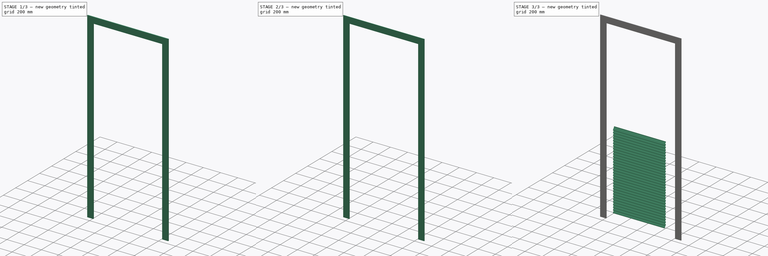
[diagram: build sequence overview — one tinted view per stage of 3, left to right]
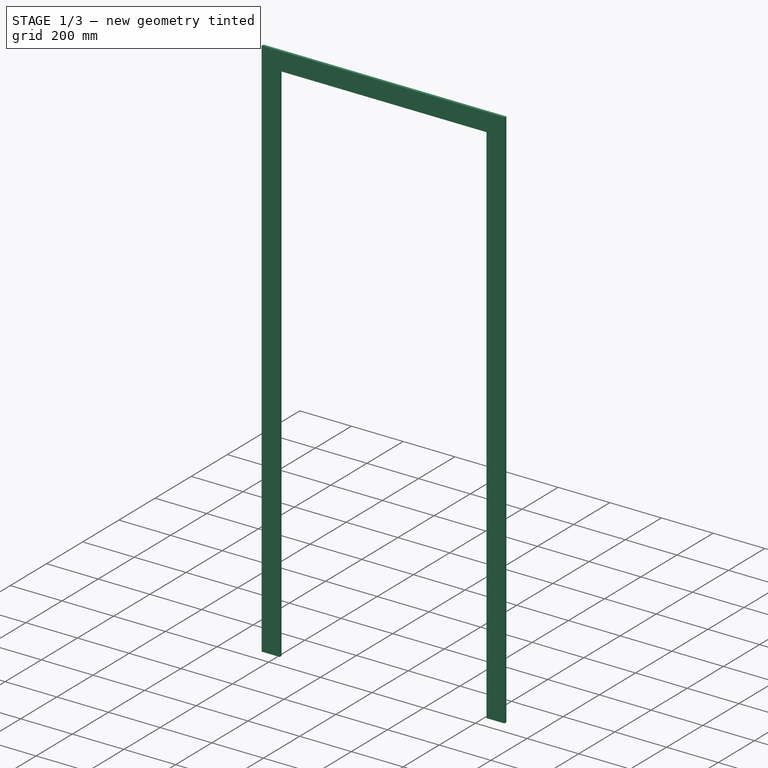
[diagram: stage 1 of 3 — iso view after this stage's code; geometry added in this stage tinted green]
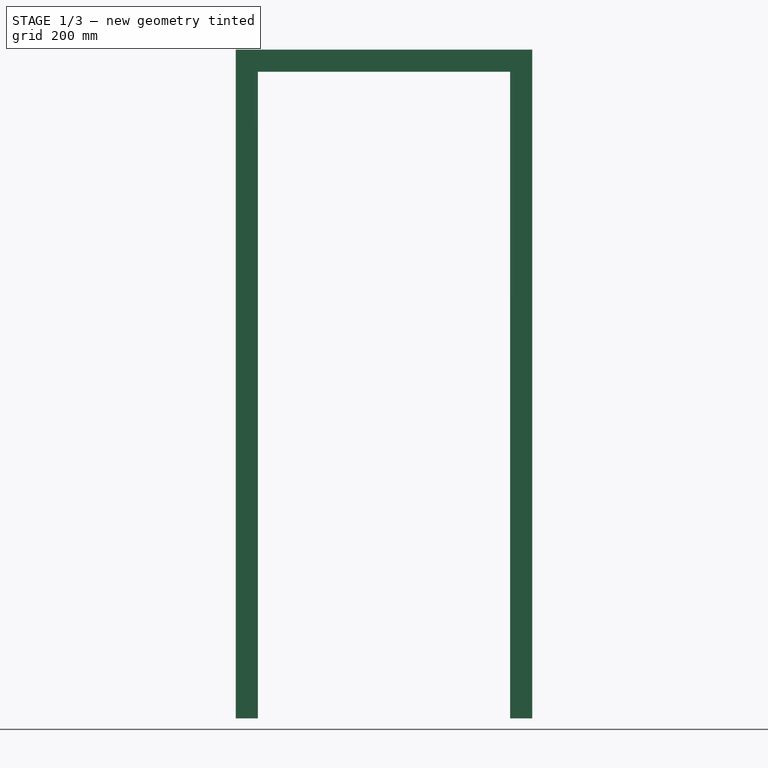
[diagram: stage 1 of 3 — front view after this stage's code; geometry added in this stage tinted green]
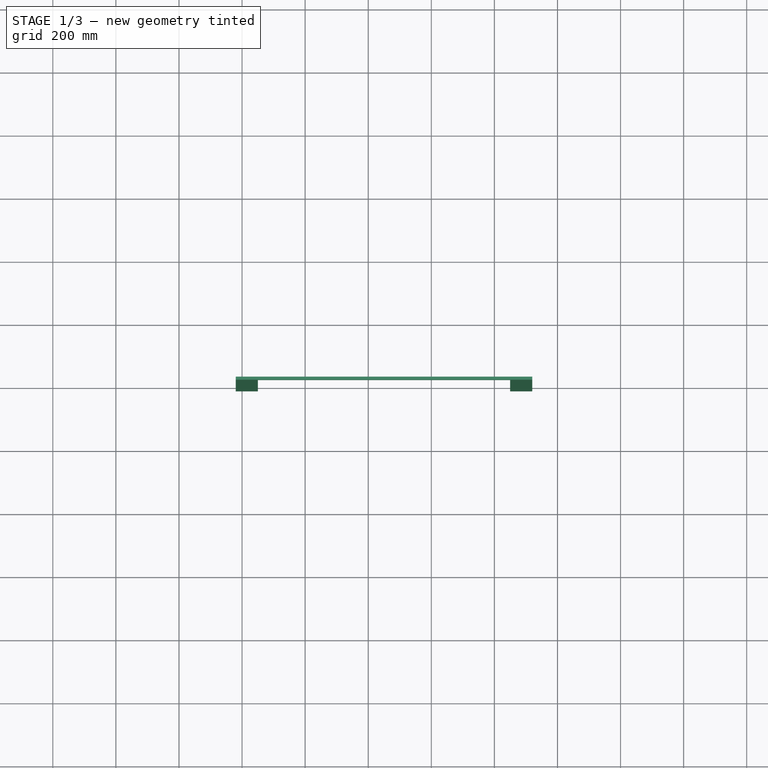
[diagram: stage 1 of 3 — top view after this stage's code; geometry added in this stage tinted green]
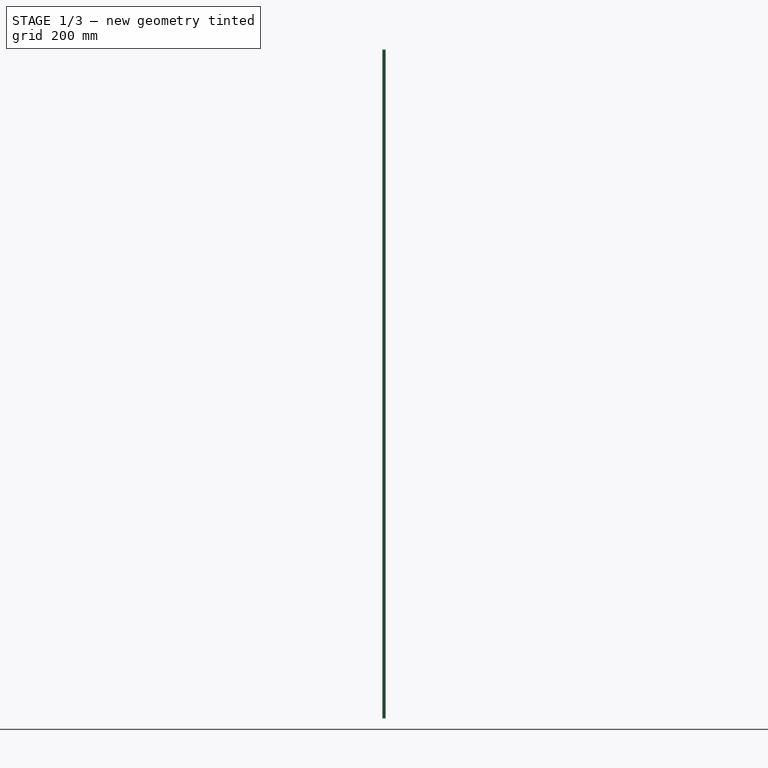
[diagram: stage 1 of 3 — right view after this stage's code; geometry added in this stage tinted green]
FCSTD DOCUMENT  (FreeCAD 0.16R6704 (Git))
Label: Single door with shutters and trims
License: CreativeCommons Attribution
LicenseURL: http://creativecommons.org/licenses/by/4.0/
objects: Sketcher::SketchObject×4, Part::FeaturePython×3, Part::Extrusion×3, PartDesign::Fillet×1, Part::Mirroring×1, App::DocumentObjectGroup×1
note: 12 computed .brp shape members not serialized (recipe doc carries the construction recipe); baked Part::Feature solids carry a one-line shape summary decoded from their .brp

FEATURE [Sketcher::SketchObject] Sketch150
  Placement = pos=(0,0,0) rot=(1,0,0;1.5708rad)
  sketch-geometry (21):
    g0: LineSegment StartX=0 StartY=0 StartZ=0 EndX=900 EndY=0 EndZ=0
    g1: LineSegment StartX=900 StartY=0 StartZ=0 EndX=900 EndY=2100 EndZ=0
    g2: LineSegment StartX=900 StartY=2100 StartZ=0 EndX=0 EndY=2100 EndZ=0
    g3: LineSegment StartX=0 StartY=2100 StartZ=0 EndX=0 EndY=0 EndZ=0
    g4: LineSegment StartX=50 StartY=0 StartZ=0 EndX=850 EndY=0 EndZ=0
    g5: LineSegment StartX=850 StartY=0 StartZ=0 EndX=850 EndY=2050 EndZ=0
    g6: LineSegment StartX=850 StartY=2050 StartZ=0 EndX=50 EndY=2050 EndZ=0
    g7: LineSegment StartX=50 StartY=2050 StartZ=0 EndX=50 EndY=0 EndZ=0
    g8: LineSegment StartX=150 StartY=1950 StartZ=0 EndX=750 EndY=1950 EndZ=0
    g9: LineSegment StartX=750 StartY=1950 StartZ=0 EndX=750 EndY=1100 EndZ=0
    g10: LineSegment StartX=750 StartY=1100 StartZ=0 EndX=150 EndY=1100 EndZ=0
    g11: LineSegment StartX=150 StartY=1100 StartZ=0 EndX=150 EndY=1950 EndZ=0
    g12: LineSegment StartX=150 StartY=1000 StartZ=0 EndX=750 EndY=1000 EndZ=0
    g13: LineSegment StartX=750 StartY=1000 StartZ=0 EndX=750 EndY=100 EndZ=0
    g14: LineSegment StartX=750 StartY=100 StartZ=0 EndX=150 EndY=100 EndZ=0
    g15: LineSegment StartX=150 StartY=100 StartZ=0 EndX=150 EndY=1000 EndZ=0
    g16: LineSegment [constr] StartX=-278 StartY=1050 StartZ=0 EndX=1352 EndY=1050 EndZ=0
    g17: LineSegment StartX=51 StartY=2049 StartZ=0 EndX=849 EndY=2049 EndZ=0
    g18: LineSegment StartX=849 StartY=2049 StartZ=0 EndX=849 EndY=1 EndZ=0
    g19: LineSegment StartX=849 StartY=1 StartZ=0 EndX=51 EndY=1 EndZ=0
    g20: LineSegment StartX=51 StartY=1 StartZ=0 EndX=51 EndY=2049 EndZ=0
  constraints (61):
    c: Coincident(g0,g1)
    c: Coincident(g1,g2)
    c: Coincident(g2,g3)
    c: Coincident(g3,g0)
    c: Horizontal(g0)
    c: Horizontal(g2)
    c: Vertical(g1)
    c: Vertical(g3)
    c: Coincident(g4,g5)
    c: Coincident(g5,g6)
    c: Coincident(g6,g7)
    c: Coincident(g7,g4)
    c: Horizontal(g4)
    c: Horizontal(g6)
    c: Vertical(g5)
    c: Vertical(g7)
    c: DistanceY(g1) = 2100  'Altura_vao'
    c: DistanceX(g0) = 900  'Largura_do_vao'
    c: DistanceY(g6,g2) = 50  'Altura_batente'
    c: DistanceX(g2,g6) = 50  'Largura_batente_1'
    c: DistanceX(g4,g0) = 50  'Largura_batente_2'
    c: DistanceY(g0,g4) = 0
    c: Coincident(g0,g-1)
    c: Coincident(g8,g9)
    c: Coincident(g9,g10)
    c: Coincident(g10,g11)
    c: Coincident(g11,g8)
    c: Horizontal(g8)
    c: Horizontal(g10)
    c: Vertical(g9)
    c: Vertical(g11)
    c: Coincident(g12,g13)
    c: Coincident(g13,g14)
    c: Coincident(g14,g15)
    c: Coincident(g15,g12)
    c: Horizontal(g12)
    c: Horizontal(g14)
    c: Vertical(g13)
    c: Vertical(g15)
    c: DistanceX(g10,g12) = 0
    c: DistanceX(g9,g12) = 0
    c: DistanceY(g12,g10) = 100  'Altura_montante_intermediario'
    c: DistanceY(g8,g6) = 100  'Altura_montante_superior_porta'
    c: DistanceX(g6,g8) = 100  'Largura_montante_porta_1'
    c: DistanceX(g8,g5) = 100  'Largura_montante_porta_2'
    c: DistanceY(g-1,g14) = 100  'Altura_montante_inferior_porta'
    c: Horizontal(g16)
    c: Symmetric(g10,g12,g16)
    c: DistanceY(g-1,g16) = 1050  'Altura_eixo_montante_intermediario'
    c: Coincident(g17,g18)
    c: Coincident(g18,g19)
    c: Coincident(g19,g20)
    c: Coincident(g20,g17)
    c: Horizontal(g17)
    c: Horizontal(g19)
    c: Vertical(g18)
    c: Vertical(g20)
    c: DistanceX(g18,g4) = 1
    c: DistanceY(g4,g18) = 1
    c: DistanceX(g6,g17) = 1
    c: DistanceY(g17,g6) = 1
FEATURE [Part::FeaturePython] Window102  label="Single door with shutters"  # WARN: FeaturePython — macro-defined, semantics opaque (R4)
  Base = -> Sketch150
  Height = 2100
  HoleDepth = 0
  MoveWithHost = true
  Normal = (0,1,0)
  Preset = 6
  Role = 1
  Width = 900
  WindowParts = BATENTE | Frame | Wire0,Wire1 | 190.0 | 0.0 | PORTA | Frame | Wire2,Wire3,Wire4 | 40.0 | 150.0
FEATURE [Sketcher::SketchObject] Sketch152
  ExternalGeometry = -> [Window102]
  Placement = pos=(150,0,0) rot=(0.57735,0.57735,0.57735;2.0944rad)
  Support = -> Window102 [Face22]
  sketch-geometry (9):
    g0: LineSegment [constr] StartX=120 StartY=493.864 StartZ=0 EndX=120 EndY=493.864 EndZ=0
    g1: LineSegment StartX=178 StartY=1948 StartZ=0 EndX=178 EndY=1943.27 EndZ=0
    g2: LineSegment StartX=178 StartY=1943.27 StartZ=0 EndX=159.76 EndY=1917.22 EndZ=0
    g3: LineSegment StartX=159.76 StartY=1917.22 StartZ=0 EndX=159.76 EndY=1912.22 EndZ=0
    g4: LineSegment StartX=159.76 StartY=1912.22 StartZ=0 EndX=161.76 EndY=1912.22 EndZ=0
    g5: LineSegment StartX=161.76 StartY=1916.95 StartZ=0 EndX=180 EndY=1943 EndZ=0
    g6: LineSegment StartX=180 StartY=1943 StartZ=0 EndX=180 EndY=1948 EndZ=0
    g7: LineSegment StartX=180 StartY=1948 StartZ=0 EndX=178 EndY=1948 EndZ=0
    g8: LineSegment StartX=161.76 StartY=1916.95 StartZ=0 EndX=161.76 EndY=1912.22 EndZ=0
  constraints (24):
    c: Coincident(g1,g7)
    c: Coincident(g6,g7)
    c: Coincident(g5,g6)
    c: Coincident(g1,g2)
    c: Coincident(g2,g3)
    c: Coincident(g3,g4)
    c: DistanceX(g1,g6) = 2
    c: Parallel(g2,g5)
    c: Vertical(g1)
    c: Vertical(g6)
    c: Vertical(g3)
    c: Horizontal(g7)
    c: Horizontal(g4)
    c: Angle(g2) = -2.18166
    c: DistanceY(g5,g6) = 5
    c: DistanceY(g5,g5) = 26.05
    c: DistanceY(g1,g1) = 4.73123
    c: DistanceX(g6,g-3) = 10
    c: DistanceY(g6,g-6) = 2
    c: Coincident(g8,g5)
    c: Coincident(g8,g4)
    c: Vertical(g8)
    c: DistanceX(g4,g4) = 2
    c: DistanceY(g8,g8) = 4.73123
FEATURE [Part::Extrusion] Extrude_Sketch150  label="Módulo veneziana 004"
  Base = -> Sketch152
  Dir = (600,0,0)
  Solid = false
  expr: Dir.x = Sketch150.Constraints.Largura_do_vao - Sketch150.Constraints.Largura_montante_porta_1 - Sketch150.Constraints.Largura_montante_porta_2 - Sketch150.Constraints.Largura_batente_1 - Sketch150.Constraints.Largura_batente_2
FEATURE [Part::FeaturePython] Array013  label="Superior shutter "  # Draft array (typed FeaturePython)
  Angle = 360
  ArrayType = 0
  Axis = (0,0,1)
  Base = -> Extrude_Sketch150
  Center = (0,0,0)
  Fuse = false
  IntervalAxis = (0,0,0)
  IntervalX = (1,0,0)
  IntervalY = (0,1,0)
  IntervalZ = (0,0,-28)
  NumberPolar = 1
  NumberX = 1
  NumberY = 1
  NumberZ = 30
  expr: NumberZ = (Sketch150.Constraints.Altura_vao - Sketch150.Constraints.Altura_eixo_montante_intermediario - Sketch150.Constraints.Altura_montante_intermediario / 2 - Sketch150.Constraints.Altura_montante_superior_porta - Sketch150.Constraints.Altura_batente) / 28
FEATURE [Sketcher::SketchObject] Sketch200  label="Esboço guarnição 001"
  ExternalGeometry = -> [Window102]
  Placement = pos=(0,0,0) rot=(1,0,0;1.5708rad)
  Support = -> Window102 [Face2]
  sketch-geometry (11):
    g0: LineSegment StartX=50 StartY=0 StartZ=0 EndX=-20 EndY=0 EndZ=0
    g1: LineSegment StartX=-20 StartY=0 StartZ=0 EndX=-20 EndY=2120 EndZ=0
    g2: LineSegment StartX=-20 StartY=2120 StartZ=0 EndX=920 EndY=2120 EndZ=0
    g3: LineSegment StartX=920 StartY=2120 StartZ=0 EndX=920 EndY=0 EndZ=0
    g4: LineSegment StartX=920 StartY=0 StartZ=0 EndX=850 EndY=0 EndZ=0
    g5: LineSegment StartX=850 StartY=0 StartZ=0 EndX=850 EndY=2050 EndZ=0
    g6: LineSegment StartX=850 StartY=2050 StartZ=0 EndX=50 EndY=2050 EndZ=0
    g7: LineSegment StartX=50 StartY=2050 StartZ=0 EndX=50 EndY=0 EndZ=0
    g8: LineSegment [constr] StartX=-20 StartY=1459.7 StartZ=0 EndX=50 EndY=1459.7 EndZ=0
    g9: LineSegment [constr] StartX=850 StartY=1400.74 StartZ=0 EndX=920 EndY=1400.74 EndZ=0
    g10: LineSegment [constr] StartX=673.616 StartY=2050 StartZ=0 EndX=673.616 EndY=2120 EndZ=0
  constraints (29):
    c: Coincident(g-3,g0)
    c: Horizontal(g0)
    c: Coincident(g0,g1)
    c: Vertical(g1)
    c: Coincident(g1,g2)
    c: Horizontal(g2)
    c: Coincident(g2,g3)
    c: Vertical(g3)
    c: Coincident(g3,g4)
    c: Coincident(g4,g-5)
    c: Horizontal(g4)
    c: Coincident(g4,g5)
    c: Coincident(g5,g-5)
    c: Coincident(g5,g6)
    c: Coincident(g6,g-4)
    c: Coincident(g6,g7)
    c: Coincident(g7,g0)
    c: DistanceX(g1,g6) = 70  'Largura guarnição'
    c: PointOnObject(g8,g1)
    c: PointOnObject(g8,g-3)
    c: PointOnObject(g9,g-5)
    c: PointOnObject(g9,g3)
    c: PointOnObject(g10,g-4)
    c: PointOnObject(g10,g2)
    c: Equal(g8,g10)
    c: Equal(g10,g9)
    c: Angle(g8) = 0
    c: Angle(g9) = 0
    c: Angle(g10) = 1.5708
FEATURE [Part::Extrusion] Extrude_Sketch200  label="Trim"
  Base = -> Sketch200
  Dir = (0,-10,0)
  Solid = true
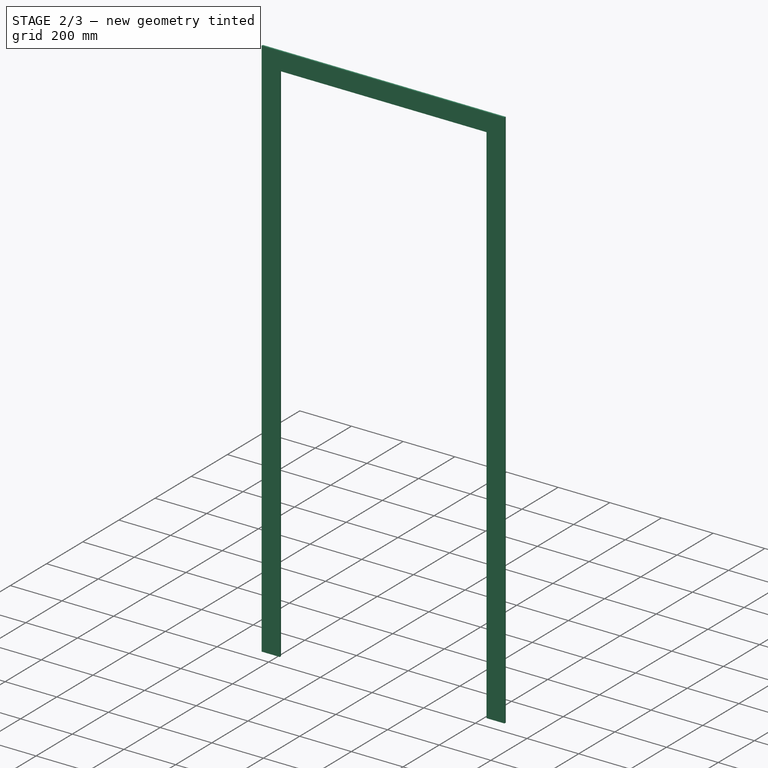
[diagram: stage 2 of 3 — iso view after this stage's code; geometry added in this stage tinted green]
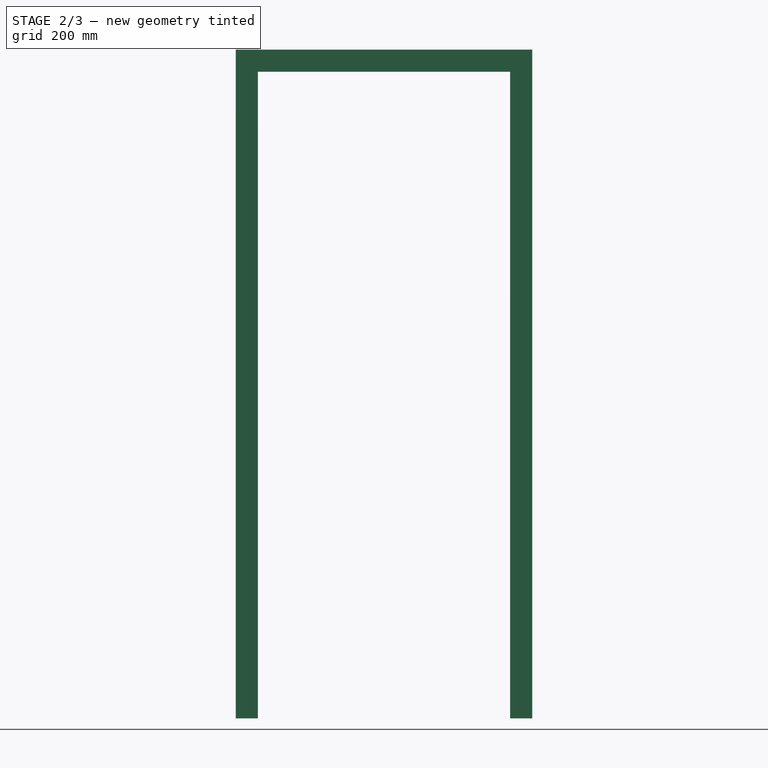
[diagram: stage 2 of 3 — front view after this stage's code; geometry added in this stage tinted green]
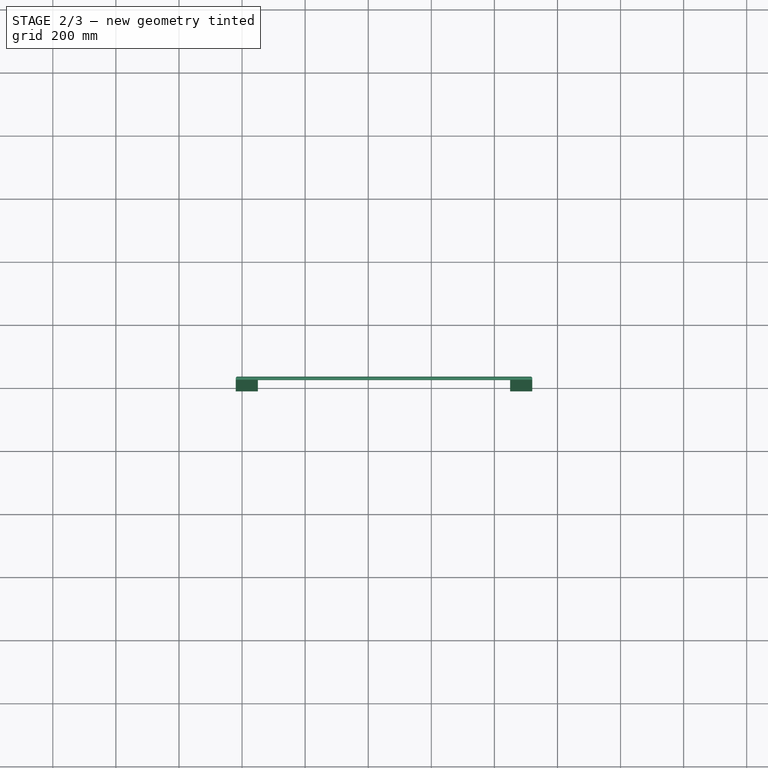
[diagram: stage 2 of 3 — top view after this stage's code; geometry added in this stage tinted green]
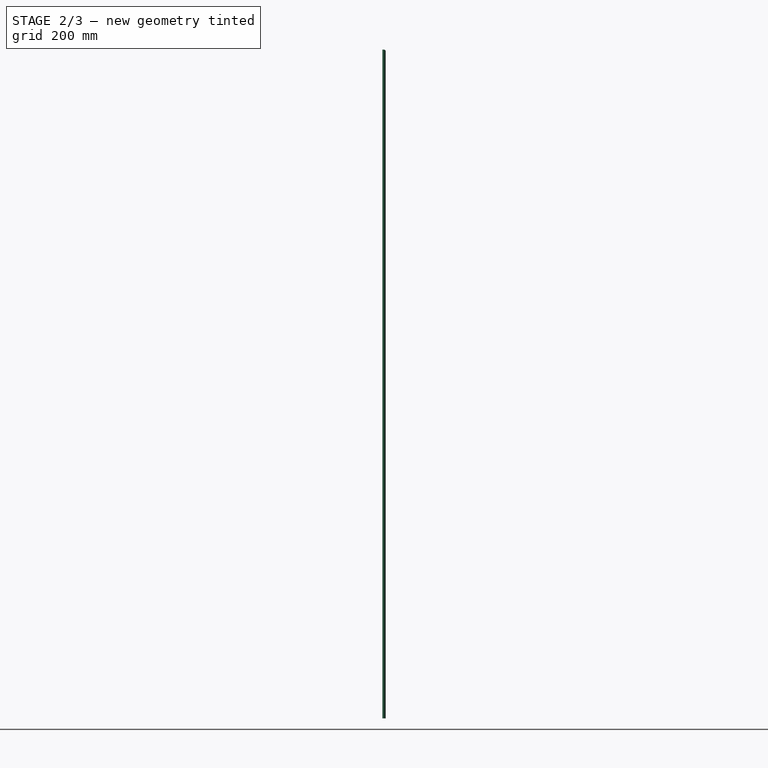
[diagram: stage 2 of 3 — right view after this stage's code; geometry added in this stage tinted green]
FEATURE [PartDesign::Fillet] Fillet008  label="Final trim "
  Base = -> Extrude_Sketch200 [Edge19,Edge13,Edge10,Edge22,Edge24,Edge7]
  Radius = 5
FEATURE [Part::Mirroring] Part__Mirroring008  label="Final trim (Mirror #9)"
  Base = (0,0,0)
  Normal = (0,1,0)
  Placement = pos=(0,190,0) rot=(0,0,1;0rad)
  Source = -> Fillet008
FEATURE [App::DocumentObjectGroup] Grupo107  label="Single door with shutters and trims"
  Group = -> [Window102,Array012,Array013,Sketch200,Extrude_Sketch200,Part__Mirroring008]
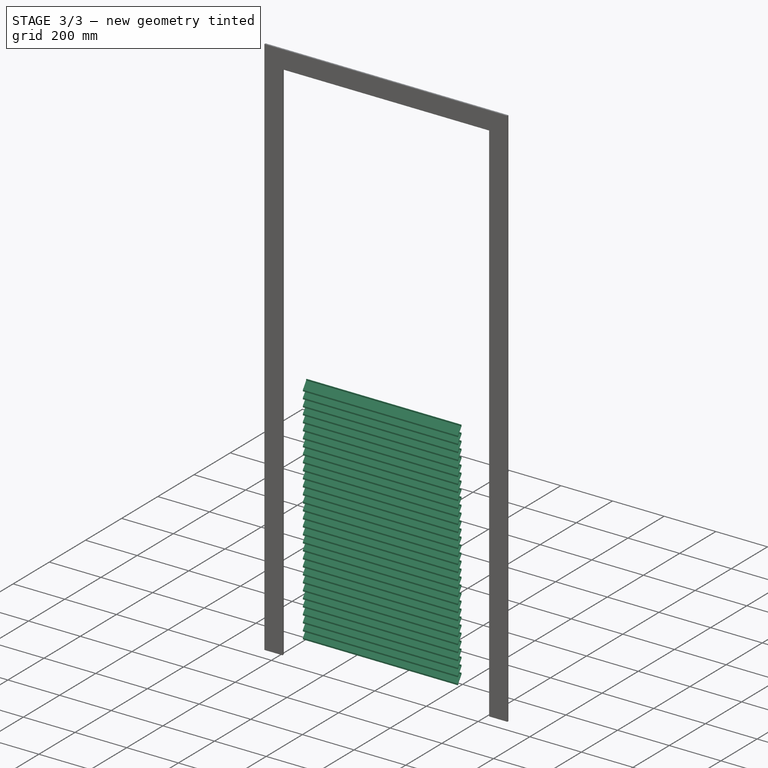
[diagram: stage 3 of 3 — iso view after this stage's code; geometry added in this stage tinted green]
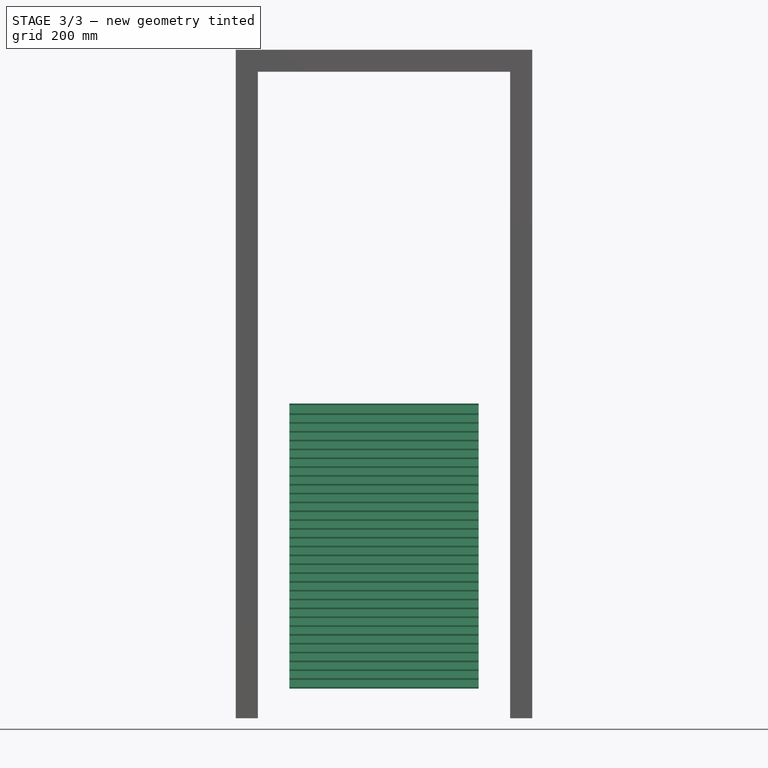
[diagram: stage 3 of 3 — front view after this stage's code; geometry added in this stage tinted green]
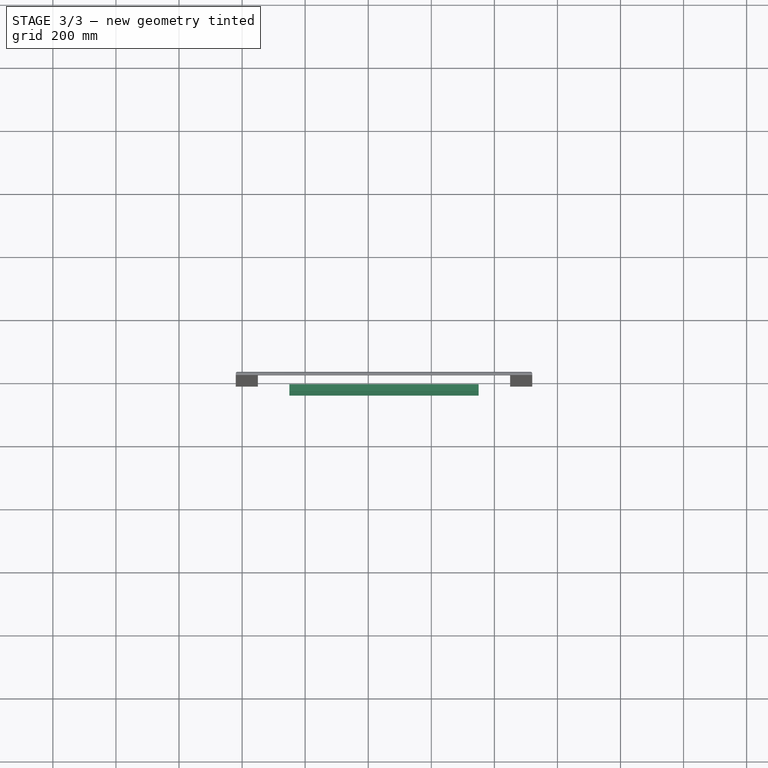
[diagram: stage 3 of 3 — top view after this stage's code; geometry added in this stage tinted green]
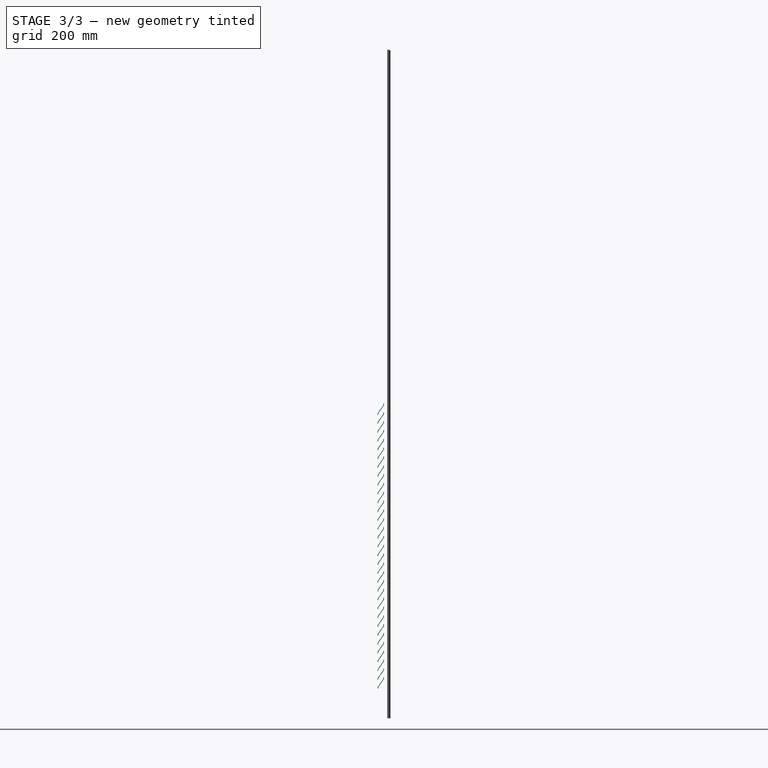
[diagram: stage 3 of 3 — right view after this stage's code; geometry added in this stage tinted green]
FEATURE [Sketcher::SketchObject] Sketch151
  ExternalGeometry = -> [Window102]
  Placement = pos=(150,0,0) rot=(0.57735,0.57735,0.57735;2.0944rad)
  Support = -> Window102 [Face17]
  sketch-geometry (9):
    g0: LineSegment [constr] StartX=120 StartY=493.864 StartZ=0 EndX=120 EndY=493.864 EndZ=0
    g1: LineSegment StartX=178 StartY=998 StartZ=0 EndX=178 EndY=993.196 EndZ=0
    g2: LineSegment StartX=178 StartY=993.196 StartZ=0 EndX=159.76 EndY=967.146 EndZ=0
    g3: LineSegment StartX=159.76 StartY=967.146 StartZ=0 EndX=159.76 EndY=961.855 EndZ=0
    g4: LineSegment StartX=159.76 StartY=961.855 StartZ=0 EndX=161.76 EndY=961.855 EndZ=0
    g5: LineSegment StartX=161.76 StartY=961.855 StartZ=0 EndX=161.76 EndY=966.659 EndZ=0
    g6: LineSegment StartX=161.76 StartY=966.659 StartZ=0 EndX=180 EndY=992.709 EndZ=0
    g7: LineSegment StartX=180 StartY=992.709 StartZ=0 EndX=180 EndY=998 EndZ=0
    g8: LineSegment StartX=180 StartY=998 StartZ=0 EndX=178 EndY=998 EndZ=0
  constraints (24):
    c: Angle(g2) = -2.18166
    c: DistanceY(g5,g6) = 26.05
    c: DistanceY(g1,g-3) = 2
    c: Coincident(g1,g8)
    c: Coincident(g7,g8)
    c: Coincident(g6,g7)
    c: Coincident(g1,g2)
    c: Vertical(g1)
    c: Vertical(g7)
    c: Vertical(g3)
    c: Vertical(g5)
    c: Horizontal(g4)
    c: Horizontal(g8)
    c: Coincident(g3,g4)
    c: Coincident(g4,g5)
    c: Coincident(g2,g3)
    c: Coincident(g5,g6)
    c: Parallel(g2,g6)
    c: DistanceX(g3,g4) = 2
    c: DistanceX(g7,g-3) = 10
    c: DistanceX(g1,g7) = 2
    c: DistanceY(g6,g7) = 5.29121
    c: DistanceY(g1,g1) = 4.80401
    c: DistanceY(g4,g5) = 4.80401
FEATURE [Part::Extrusion] Extrude_Sketch149  label="Módulo veneziana002"
  Base = -> Sketch151
  Dir = (600,0,0)
  Solid = true
  expr: Dir.x = Sketch150.Constraints.Largura_do_vao - Sketch150.Constraints.Largura_montante_porta_1 - Sketch150.Constraints.Largura_montante_porta_2 - Sketch150.Constraints.Largura_batente_1 - Sketch150.Constraints.Largura_batente_2
FEATURE [Part::FeaturePython] Array012  label="Inferior shutter"  # Draft array (typed FeaturePython)
  Angle = 360
  ArrayType = 0
  Axis = (0,0,1)
  Base = -> Extrude_Sketch149
  Center = (0,0,0)
  Fuse = false
  IntervalAxis = (0,0,0)
  IntervalX = (1,0,0)
  IntervalY = (0,1,0)
  IntervalZ = (0,0,-28)
  NumberPolar = 1
  NumberX = 1
  NumberY = 1
  NumberZ = 32
  expr: NumberZ = (Sketch150.Constraints.Altura_eixo_montante_intermediario - Sketch150.Constraints.Altura_montante_intermediario / 2 - Sketch150.Constraints.Altura_montante_inferior_porta) / 28
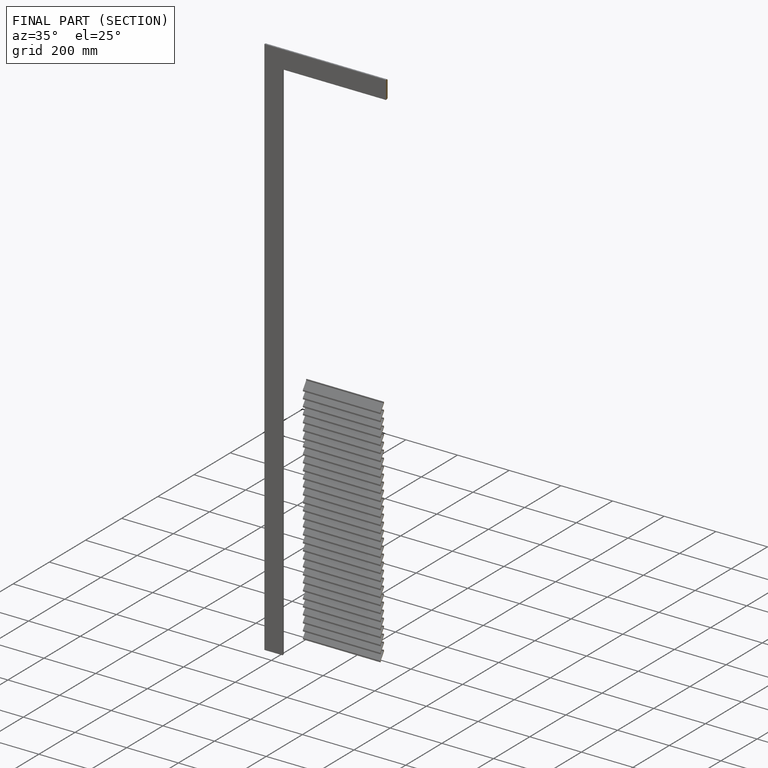
[diagram: finished part — half-section view (interior)]
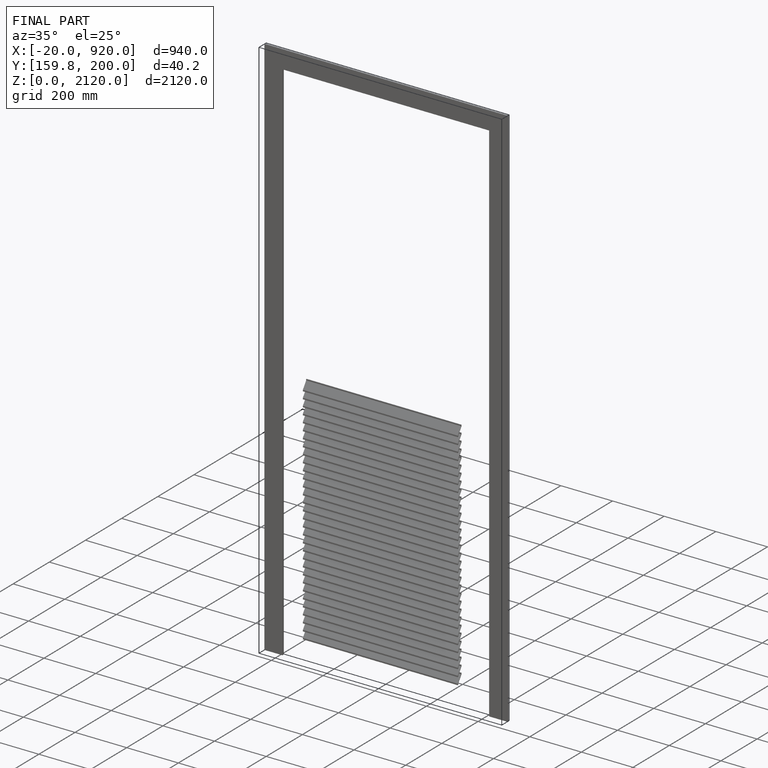
[diagram: finished part — iso view with bounding-box wireframe]
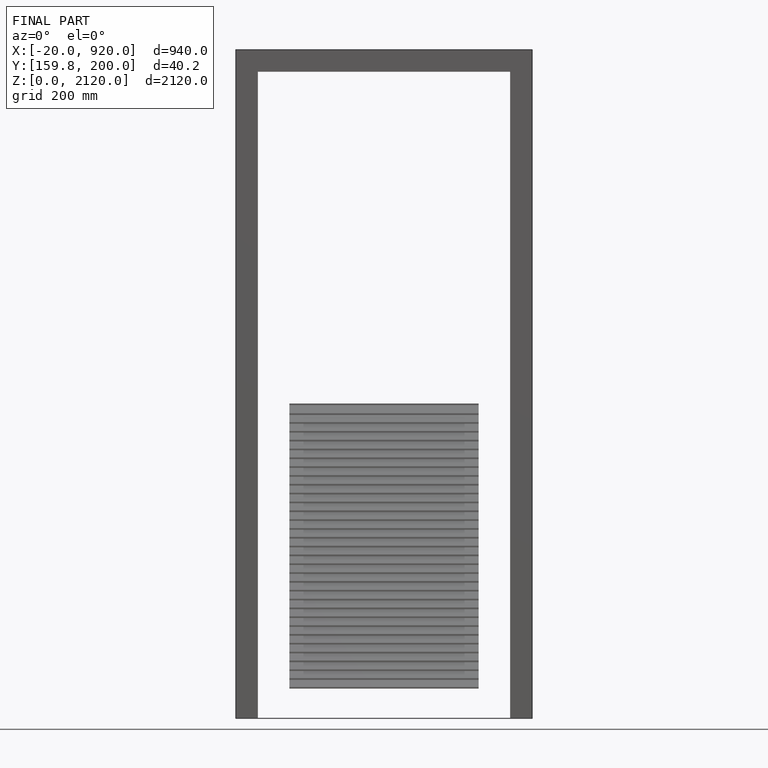
[diagram: finished part — front view with bounding-box wireframe]
